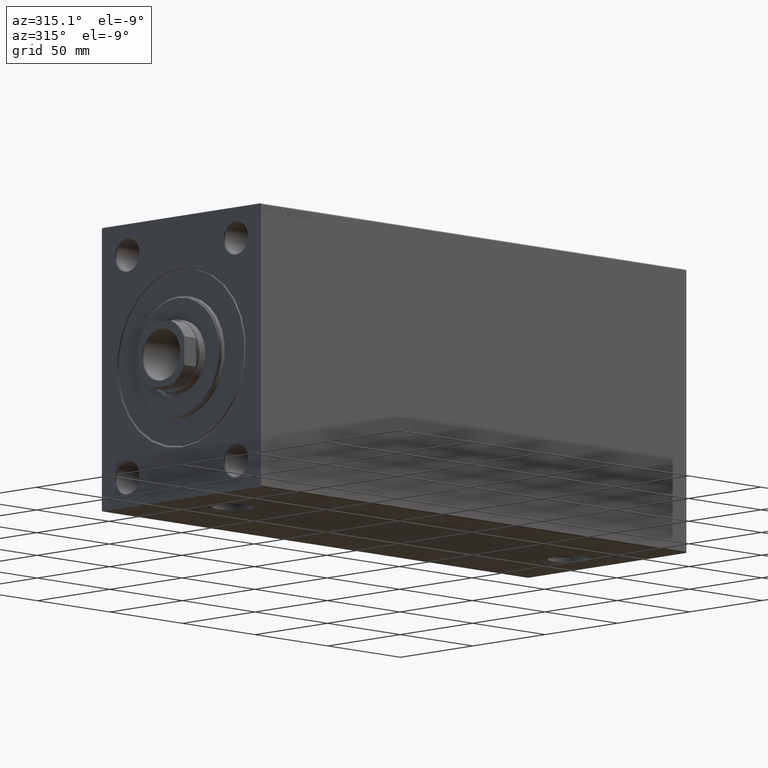
[diagram: clean part render]
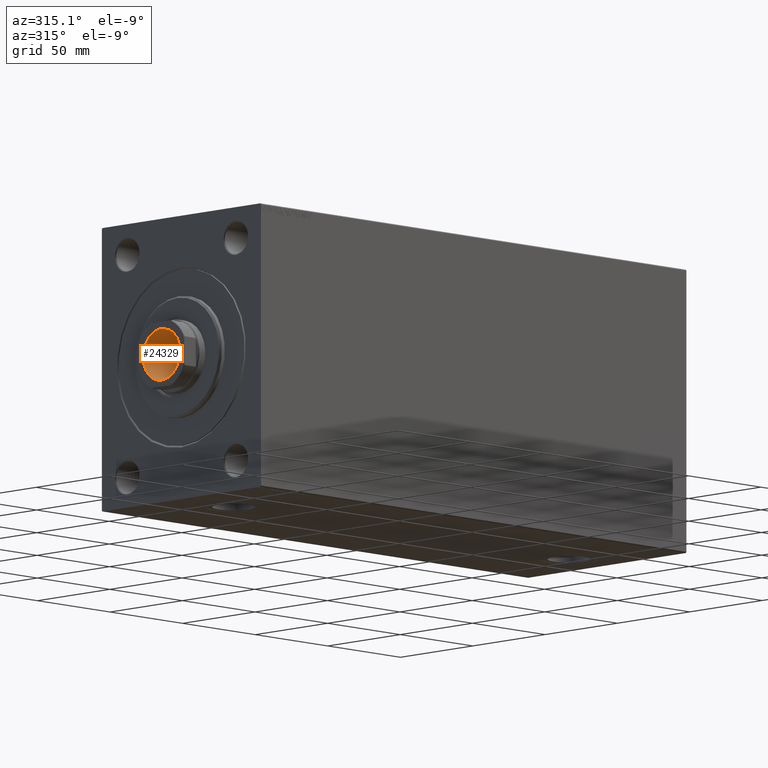
[diagram: same view with one face highlighted and labeled with its STEP entity id]
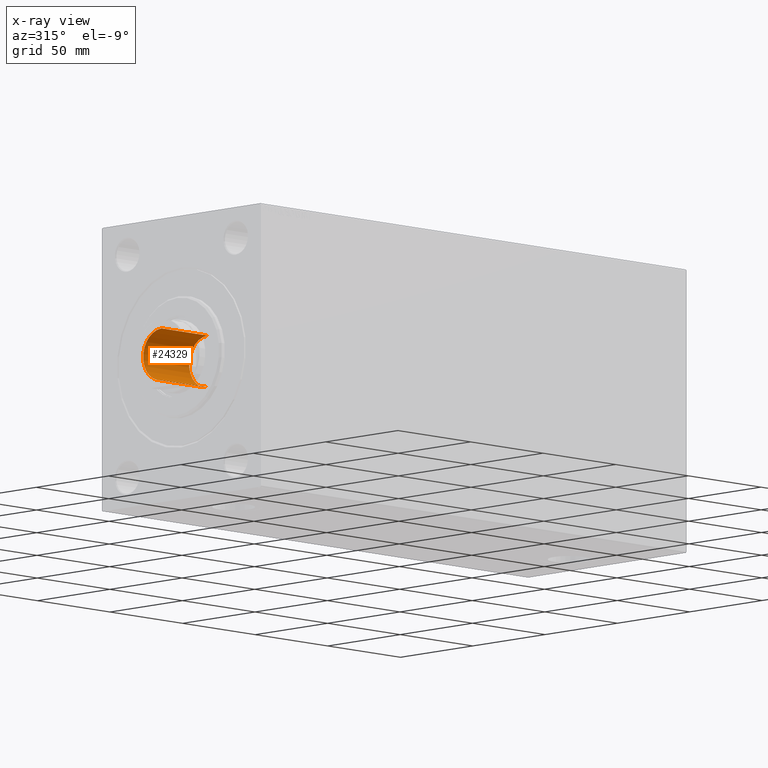
[diagram: x-ray of the same camera — body ghosted, the highlighted face saturated]
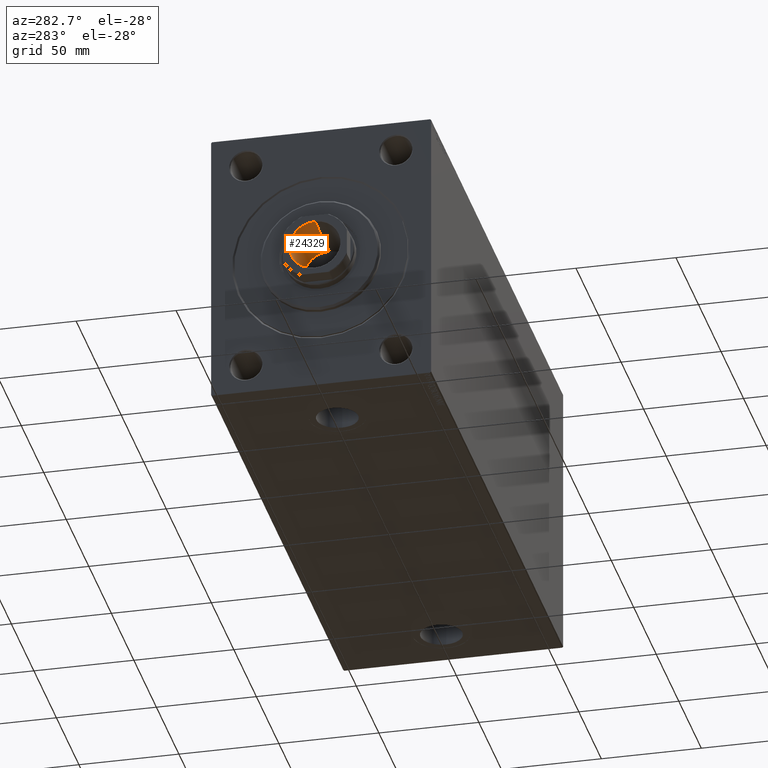
[diagram: same view with one face highlighted and labeled with its STEP entity id]
A machine part, auxiliary view. The second image highlights one B-rep face of the part: STEP entity #24329.
The next image is the same camera in x-ray: the body ghosted, the highlighted face saturated — about 0% of this face is hidden behind the body in this view.
A second angle (auxiliary view) of the same face is appended — the face is thin or edge-on in the first view.
In plain terms, the highlighted cylindrical surface (edge-blend (fillet) strip) has radius 12.75 mm, axis along (-1, 0, 0).
Its self-contained STEP definition (entity closure, byte-faithful):
#442 = LINE ( 'NONE', #32098, #7208 ) ;
#1506 = CYLINDRICAL_SURFACE ( 'NONE', #25516, 12.74999999999999645 ) ;
#1724 = ORIENTED_EDGE ( 'NONE', *, *, #29551, .T. ) ;
#4383 = DIRECTION ( 'NONE',  ( -0.000000000000000000, -0.000000000000000000, 1.000000000000000000 ) ) ;
#4427 = AXIS2_PLACEMENT_3D ( 'NONE', #11673, #5191, #33373 ) ;
#5191 = DIRECTION ( 'NONE',  ( -0.000000000000000000, -0.000000000000000000, 1.000000000000000000 ) ) ;
#5194 = CARTESIAN_POINT ( 'NONE',  ( 0.000000000000000000, 0.000000000000000000, 286.0000000000000568 ) ) ;
#6971 = CARTESIAN_POINT ( 'NONE',  ( 12.74999999999999467, 0.000000000000000000, 254.0000000000000000 ) ) ;
#7208 = VECTOR ( 'NONE', #14540, 1000.000000000000000 ) ;
#7853 = LINE ( 'NONE', #25865, #26076 ) ;
#10298 = CARTESIAN_POINT ( 'NONE',  ( -12.74999999999999645, 1.561424668912874717E-15, 285.7000000000000455 ) ) ;
#10672 = DIRECTION ( 'NONE',  ( 0.000000000000000000, 0.000000000000000000, 1.000000000000000000 ) ) ;
#11423 = VERTEX_POINT ( 'NONE', #29070 ) ;
#11673 = CARTESIAN_POINT ( 'NONE',  ( 0.000000000000000000, 0.000000000000000000, 254.0000000000000000 ) ) ;
#12349 = AXIS2_PLACEMENT_3D ( 'NONE', #28483, #10672, #31713 ) ;
#12579 = VERTEX_POINT ( 'NONE', #6971 ) ;
#14540 = DIRECTION ( 'NONE',  ( -0.000000000000000000, -0.000000000000000000, 1.000000000000000000 ) ) ;
#14928 = DIRECTION ( 'NONE',  ( 1.000000000000000000, 0.000000000000000000, 0.000000000000000000 ) ) ;
#15345 = ORIENTED_EDGE ( 'NONE', *, *, #43982, .F. ) ;
#18689 = VERTEX_POINT ( 'NONE', #10298 ) ;
#19062 = FACE_OUTER_BOUND ( 'NONE', #34825, .T. ) ;
#24329 = ADVANCED_FACE ( 'NONE', ( #19062 ), #1506, .F. ) ;
#25516 = AXIS2_PLACEMENT_3D ( 'NONE', #5194, #26458, #14928 ) ;
#25865 = CARTESIAN_POINT ( 'NONE',  ( -12.74999999999999645, 1.561424668912874717E-15, 286.0000000000000568 ) ) ;
#26076 = VECTOR ( 'NONE', #4383, 1000.000000000000000 ) ;
#26458 = DIRECTION ( 'NONE',  ( -0.000000000000000000, -0.000000000000000000, 1.000000000000000000 ) ) ;
#28483 = CARTESIAN_POINT ( 'NONE',  ( 0.000000000000000000, 0.000000000000000000, 285.7000000000000455 ) ) ;
#29070 = CARTESIAN_POINT ( 'NONE',  ( 12.74999999999999645, 0.000000000000000000, 285.7000000000000455 ) ) ;
#29551 = EDGE_CURVE ( 'NONE', #12579, #11423, #442, .T. ) ;
#31713 = DIRECTION ( 'NONE',  ( 1.000000000000000000, 0.000000000000000000, 0.000000000000000000 ) ) ;
#32098 = CARTESIAN_POINT ( 'NONE',  ( 12.74999999999999645, 0.000000000000000000, 286.0000000000000568 ) ) ;
#32300 = CIRCLE ( 'NONE', #12349, 12.74999999999999645 ) ;
#33373 = DIRECTION ( 'NONE',  ( 1.000000000000000000, 0.000000000000000000, 0.000000000000000000 ) ) ;
#33983 = EDGE_CURVE ( 'NONE', #11423, #18689, #32300, .T. ) ;
#34825 = EDGE_LOOP ( 'NONE', ( #15345, #36846, #1724, #40206 ) ) ;
#36846 = ORIENTED_EDGE ( 'NONE', *, *, #39761, .F. ) ;
#39761 = EDGE_CURVE ( 'NONE', #12579, #40451, #44276, .T. ) ;
#40206 = ORIENTED_EDGE ( 'NONE', *, *, #33983, .T. ) ;
#40451 = VERTEX_POINT ( 'NONE', #41807 ) ;
#41807 = CARTESIAN_POINT ( 'NONE',  ( -12.74999999999999467, 1.561424668912874519E-15, 254.0000000000000000 ) ) ;
#43982 = EDGE_CURVE ( 'NONE', #40451, #18689, #7853, .T. ) ;
#44276 = CIRCLE ( 'NONE', #4427, 12.74999999999999467 ) ;